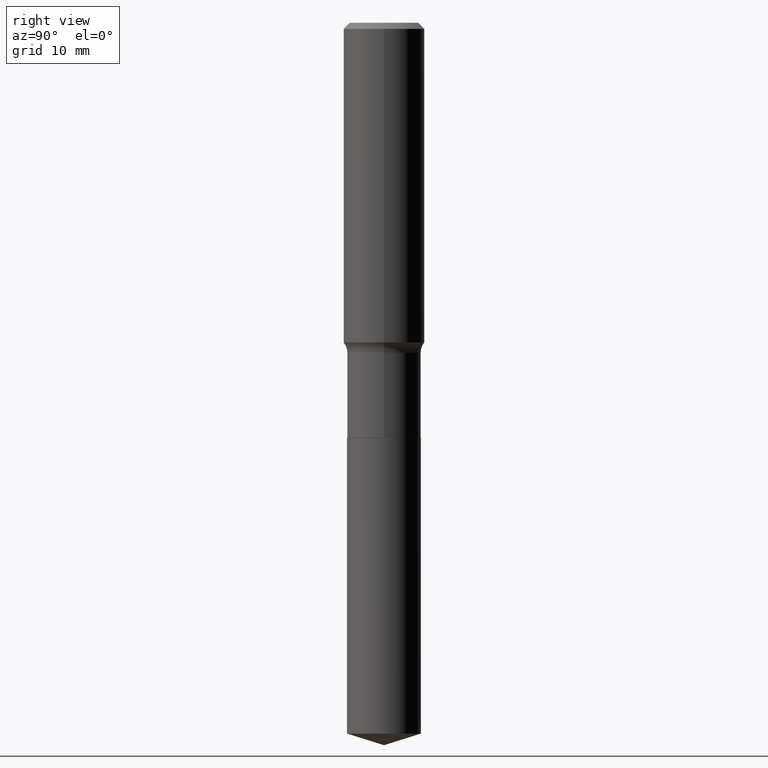
[diagram: clean part render]
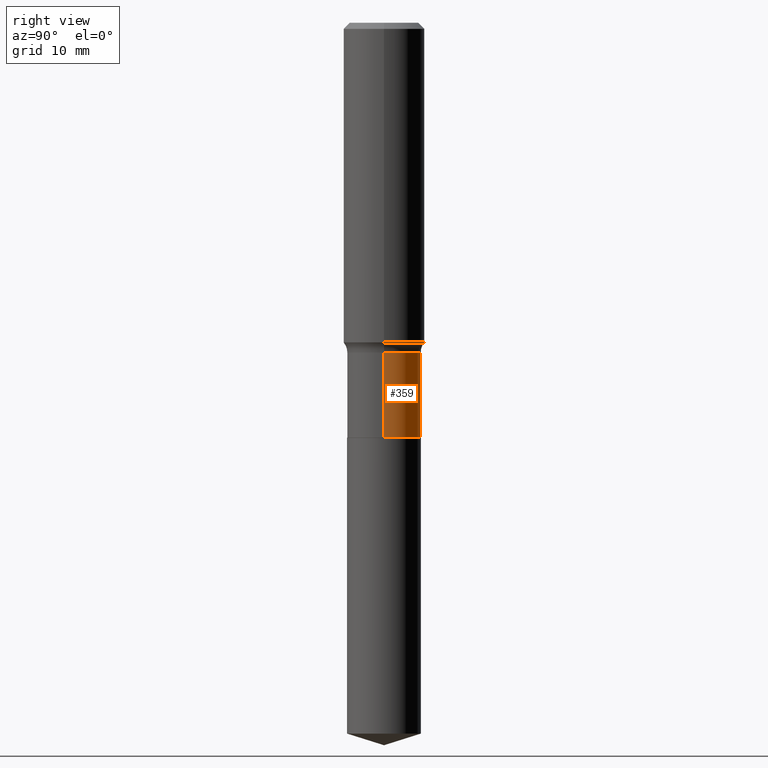
[diagram: same view with one face highlighted and labeled with its STEP entity id]
A machine part, right view. The second image highlights one B-rep face of the part: STEP entity #359.
In plain terms, the highlighted cylindrical surface (partial cylindrical patch) has radius 4.5504 mm, axis along (-0, 0, 1).
Its self-contained STEP definition (entity closure, byte-faithful):
#9 = VECTOR ( 'NONE', #316, 39.37007874015748143 ) ;
#10 = LINE ( 'NONE', #193, #9 ) ;
#27 = DIRECTION ( 'NONE',  ( -2.445468806185136597E-29, 3.491481338843145583E-15, 1.000000000000000000 ) ) ;
#29 = DIRECTION ( 'NONE',  ( -2.445468806185136877E-29, 3.491481338843145188E-15, 1.000000000000000000 ) ) ;
#42 = VERTEX_POINT ( 'NONE', #238 ) ;
#45 = CARTESIAN_POINT ( 'NONE',  ( 0.000000000000000000, 0.000000000000000000, 0.000000000000000000 ) ) ;
#49 = CARTESIAN_POINT ( 'NONE',  ( 4.918571409880165014E-29, -7.022416416815218724E-15, -2.011299999999999866 ) ) ;
#67 = EDGE_LOOP ( 'NONE', ( #254, #372, #81, #134 ) ) ;
#75 = DIRECTION ( 'NONE',  ( -2.445468806185136597E-29, 3.491481338843145583E-15, 1.000000000000000000 ) ) ;
#81 = ORIENTED_EDGE ( 'NONE', *, *, #325, .F. ) ;
#104 = CARTESIAN_POINT ( 'NONE',  ( 3.912260996134981658E-29, -5.585671845881263700E-15, -1.599799999999999889 ) ) ;
#126 = AXIS2_PLACEMENT_3D ( 'NONE', #49, #205, #288 ) ;
#131 = EDGE_CURVE ( 'NONE', #42, #287, #369, .T. ) ;
#134 = ORIENTED_EDGE ( 'NONE', *, *, #450, .F. ) ;
#148 = AXIS2_PLACEMENT_3D ( 'NONE', #45, #75, #152 ) ;
#152 = DIRECTION ( 'NONE',  ( 1.000000000000000000, -6.982962677686267499E-15, 4.876176775795935793E-29 ) ) ;
#165 = VECTOR ( 'NONE', #29, 39.37007874015748143 ) ;
#193 = CARTESIAN_POINT ( 'NONE',  ( -0.1791499999999999759, 1.272937311114219312E-15, -8.812272214191663486E-30 ) ) ;
#205 = DIRECTION ( 'NONE',  ( -2.445468806185136597E-29, 3.491481338843145583E-15, 1.000000000000000000 ) ) ;
#207 = VERTEX_POINT ( 'NONE', #279 ) ;
#238 = CARTESIAN_POINT ( 'NONE',  ( 0.1791500000000000314, -8.273414180522713146E-15, -2.011299999999999866 ) ) ;
#242 = CYLINDRICAL_SURFACE ( 'NONE', #148, 0.1791499999999999759 ) ;
#254 = ORIENTED_EDGE ( 'NONE', *, *, #131, .T. ) ;
#279 = CARTESIAN_POINT ( 'NONE',  ( -0.1791499999999999759, -5.031106820234022294E-15, -1.599799999999999889 ) ) ;
#287 = VERTEX_POINT ( 'NONE', #335 ) ;
#288 = DIRECTION ( 'NONE',  ( 1.000000000000000000, -6.982962677686267499E-15, 0.000000000000000000 ) ) ;
#316 = DIRECTION ( 'NONE',  ( -2.445468806185136877E-29, 3.491481338843145188E-15, 1.000000000000000000 ) ) ;
#325 = EDGE_CURVE ( 'NONE', #411, #207, #381, .T. ) ;
#335 = CARTESIAN_POINT ( 'NONE',  ( -0.1791500000000000314, -5.031106820234021505E-15, -2.011299999999999866 ) ) ;
#338 = DIRECTION ( 'NONE',  ( 1.000000000000000000, -6.982962677686269866E-15, 0.000000000000000000 ) ) ;
#344 = CARTESIAN_POINT ( 'NONE',  ( 0.1791499999999999759, -1.250997763707494620E-15, 8.735670693838418171E-30 ) ) ;
#352 = LINE ( 'NONE', #344, #165 ) ;
#356 = FACE_OUTER_BOUND ( 'NONE', #67, .T. ) ;
#359 = ADVANCED_FACE ( 'NONE', ( #356 ), #242, .T. ) ;
#369 = CIRCLE ( 'NONE', #126, 0.1791500000000000314 ) ;
#372 = ORIENTED_EDGE ( 'NONE', *, *, #383, .T. ) ;
#381 = CIRCLE ( 'NONE', #415, 0.1791499999999999759 ) ;
#383 = EDGE_CURVE ( 'NONE', #287, #207, #10, .T. ) ;
#411 = VERTEX_POINT ( 'NONE', #432 ) ;
#415 = AXIS2_PLACEMENT_3D ( 'NONE', #104, #27, #338 ) ;
#432 = CARTESIAN_POINT ( 'NONE',  ( 0.1791499999999999759, -6.836669609588758911E-15, -1.599799999999999889 ) ) ;
#450 = EDGE_CURVE ( 'NONE', #42, #411, #352, .T. ) ;